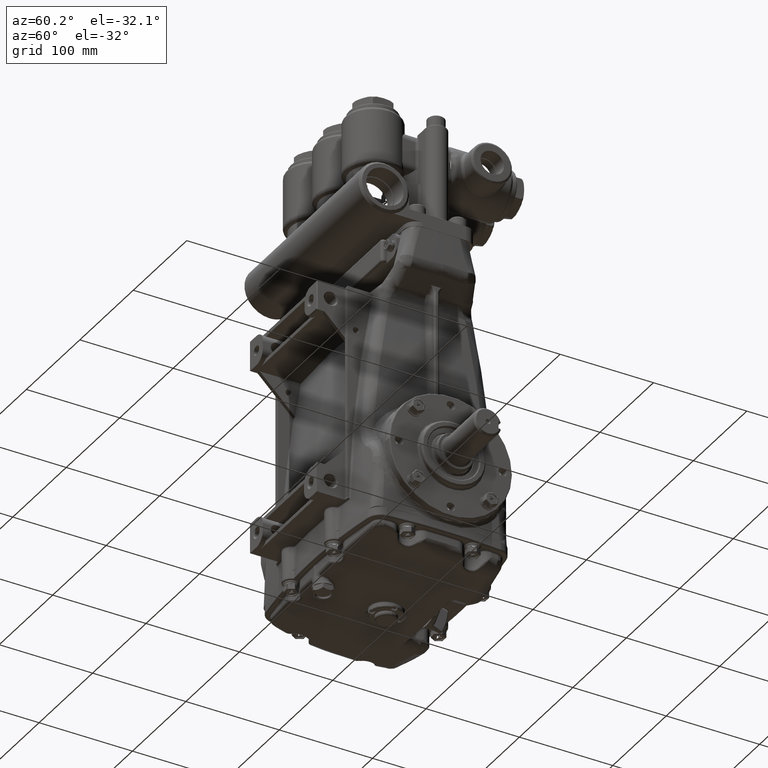
[diagram: clean part render]
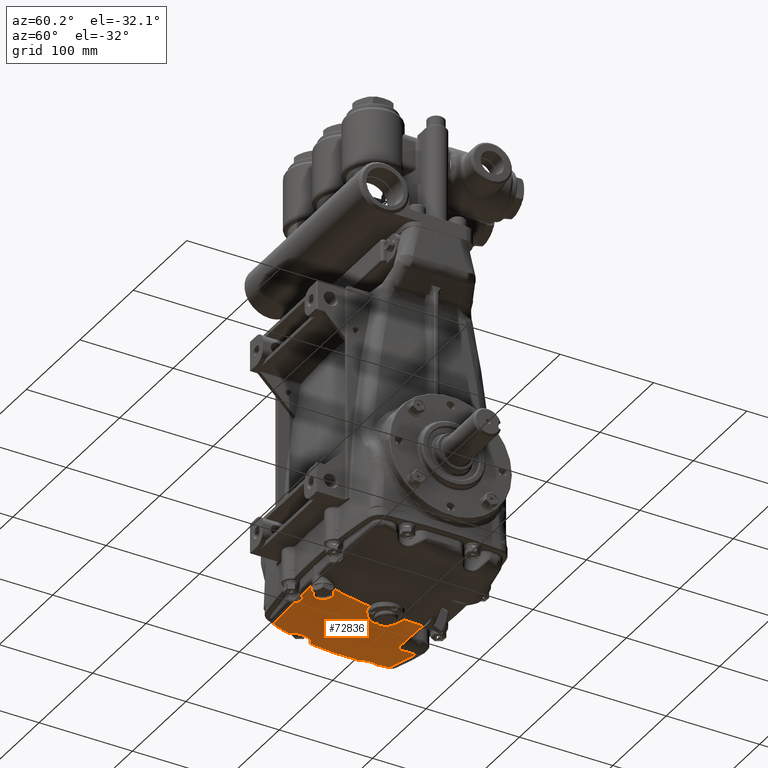
[diagram: same view with one face highlighted and labeled with its STEP entity id]
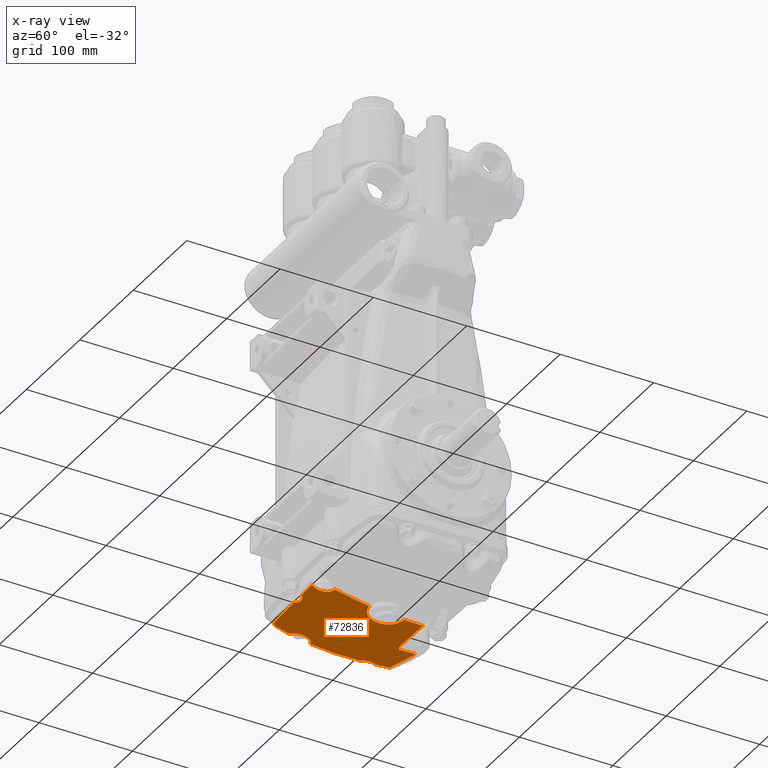
[diagram: x-ray of the same camera — body ghosted, the highlighted face saturated]
A machine part, auxiliary view. The second image highlights one B-rep face of the part: STEP entity #72836.
The next image is the same camera in x-ray: the body ghosted, the highlighted face saturated — about 0% of this face is hidden behind the body in this view.
In plain terms, the highlighted toroidal blend (fillet) surface has major radius 100 mm and minor (blend) radius 400 mm.
Its self-contained STEP definition (entity closure, byte-faithful):
#592 = CARTESIAN_POINT ( 'NONE',  ( -3.856336081969278684, -0.1044199386032027693, -3.803316479309694298 ) ) ;
#643 = VERTEX_POINT ( 'NONE', #35588 ) ;
#928 = CARTESIAN_POINT ( 'NONE',  ( -3.571024562914657086, 1.269346948349493021, -3.930934210272327700 ) ) ;
#1911 = CARTESIAN_POINT ( 'NONE',  ( -3.590000298304392157, 1.545245332004949290, -3.927292317479010197 ) ) ;
#2261 = CARTESIAN_POINT ( 'NONE',  ( -3.823806146129085537, -1.793153042647171569, -3.549776368419175654 ) ) ;
#2658 = CARTESIAN_POINT ( 'NONE',  ( -3.720859036953444665, 1.037867726598609819, -3.899014983528266587 ) ) ;
#2680 = CARTESIAN_POINT ( 'NONE',  ( 8.831981099300206732E-29, -0.7094424206646805509, -4.116319017392696011 ) ) ;
#2805 = CARTESIAN_POINT ( 'NONE',  ( -9.594870526277489442E-05, -2.167208969864354628, -3.849009837873281992 ) ) ;
#3098 = CARTESIAN_POINT ( 'NONE',  ( -1.876542483643144577, -2.812870495884016275, -3.592079507783254577 ) ) ;
#3300 = CARTESIAN_POINT ( 'NONE',  ( -0.03875249259764600163, -2.168561309346253019, -3.848661969262286320 ) ) ;
#3327 = CARTESIAN_POINT ( 'NONE',  ( -0.2318871692632969994, -0.6734999440132731774, -4.119816999286450176 ) ) ;
#3566 = CARTESIAN_POINT ( 'NONE',  ( 0.000000000000000000, 1.398871258882495416, 11.48994605243186840 ) ) ;
#3595 = ORIENTED_EDGE ( 'NONE', *, *, #26386, .T. ) ;
#3784 = CARTESIAN_POINT ( 'NONE',  ( -0.2809030884551332319, -2.259870291188983860, -3.825128626396551823 ) ) ;
#4221 = CARTESIAN_POINT ( 'NONE',  ( -3.569199946859465733, -1.290846983093253630, -3.696464366414474068 ) ) ;
#4291 = CARTESIAN_POINT ( 'NONE',  ( -0.7205948159291438726, -0.1167855076261579972, -4.171753997556006510 ) ) ;
#4764 = CARTESIAN_POINT ( 'NONE',  ( -0.1672298112018910932, -2.197643210452882467, -3.841182376156521361 ) ) ;
#4863 = CARTESIAN_POINT ( 'NONE',  ( -2.187762165971132156, -2.786261965328659329, -3.566853002154207530 ) ) ;
#5189 = CARTESIAN_POINT ( 'NONE',  ( -3.571925563724398067, -1.280049169528286290, -3.697855605797109479 ) ) ;
#5752 = CARTESIAN_POINT ( 'NONE',  ( -3.808751006990228394, -2.557495466567951237, -3.371037965365549116 ) ) ;
#5799 = CARTESIAN_POINT ( 'NONE',  ( -3.586567978287549696, 2.204579372434504414, -3.907619816998144646 ) ) ;
#5946 = CARTESIAN_POINT ( 'NONE',  ( -3.823806146129085537, -1.793153042647171569, -3.549776368419175654 ) ) ;
#6222 = CARTESIAN_POINT ( 'NONE',  ( -1.985933068909048860, 1.682544462914409511, -4.155086548889387110 ) ) ;
#6232 = CARTESIAN_POINT ( 'NONE',  ( -3.728132651066273340, -2.589356219755102551, -3.378722439390763110 ) ) ;
#6465 = B_SPLINE_CURVE_WITH_KNOTS ( 'NONE', 3,
 ( #24878, #23913, #69542, #54333 ),
 .UNSPECIFIED., .F., .F.,
 ( 4, 4 ),
 ( 0.000000000000000000, 0.0003623067658960041262 ),
 .UNSPECIFIED. ) ;
#6701 = CARTESIAN_POINT ( 'NONE',  ( -1.702059072287212205, 1.572153632602977247, -4.183406504010035221 ) ) ;
#7004 = CARTESIAN_POINT ( 'NONE',  ( -3.857385483870375165, -0.1147306797760912073, -3.802095298615916885 ) ) ;
#7072 = CARTESIAN_POINT ( 'NONE',  ( -1.773899349228732936, -2.741790388264389922, -3.621584547401897947 ) ) ;
#7547 = VERTEX_POINT ( 'NONE', #52713 ) ;
#7664 = CARTESIAN_POINT ( 'NONE',  ( -3.837911201487526736, -2.532833158084777825, -3.371615148318053201 ) ) ;
#7825 = CARTESIAN_POINT ( 'NONE',  ( -3.558036542331452168, 1.352642941017455414, -3.933798247993799180 ) ) ;
#8048 = CARTESIAN_POINT ( 'NONE',  ( -1.539795395510776155, -2.699382030295283119, -3.653449653502197858 ) ) ;
#8173 = ORIENTED_EDGE ( 'NONE', *, *, #79590, .T. ) ;
#8307 = CARTESIAN_POINT ( 'NONE',  ( -3.562506928695765129, 1.310741151847096608, -3.932794456441090603 ) ) ;
#8654 = EDGE_CURVE ( 'NONE', #83164, #77637, #54717, .T. ) ;
#8806 = CARTESIAN_POINT ( 'NONE',  ( -3.924604866268332604, -2.057005198355785769, -3.472238758579972551 ) ) ;
#9006 = CARTESIAN_POINT ( 'NONE',  ( -1.610741714477412989, -2.698428200343477634, -3.647849478386491651 ) ) ;
#9128 = CARTESIAN_POINT ( 'NONE',  ( -3.743911324225186465, -1.749837117440828482, -3.574789607459037732 ) ) ;
#9269 = CARTESIAN_POINT ( 'NONE',  ( -3.643069491762564560, 1.118233739748700994, -3.915502021971070334 ) ) ;
#9549 = DIRECTION ( 'NONE',  ( 0.000000000000000000, -1.000000000000000000, 0.000000000000000000 ) ) ;
#9620 = CARTESIAN_POINT ( 'NONE',  ( -3.889728796792139676, -0.9685609581753976682, -3.687365237285401331 ) ) ;
#10136 = CIRCLE ( 'NONE', #68147, 15.74803149606299613 ) ;
#10307 = B_SPLINE_CURVE_WITH_KNOTS ( 'NONE', 3,
 ( #33264, #11174, #56828, #27838, #4291, #41140, #93181, #57300, #34235, #86793, #19509, #10680, #87750, #87267, #71066, #40642, #12632, #70577, #33737, #3327, #49464, #63678, #63200, #79407, #93671, #12141 ),
 .UNSPECIFIED., .F., .F.,
 ( 4, 2, 2, 2, 2, 2, 2, 2, 2, 2, 2, 2, 4 ),
 ( 0.02967068868578288249, 0.03144727073204557632, 0.03322385277830827016, 0.03677701687083366477, 0.03855359891709635167, 0.04033018096335904551, 0.04388334505588442624, 0.04565992710214711314, 0.04743650914840980698, 0.05098967324093518771, 0.05454283733346056151, 0.05631941937972325535, 0.05809600142598594225 ),
 .UNSPECIFIED. ) ;
#10680 = CARTESIAN_POINT ( 'NONE',  ( -0.5751992477293694783, -0.4339937578021841325, -4.142675562527530886 ) ) ;
#11095 = CARTESIAN_POINT ( 'NONE',  ( -3.782867252268417690, -1.773366506794162190, -3.562143213188625257 ) ) ;
#11148 = CARTESIAN_POINT ( 'NONE',  ( -0.08794888599023548137, -2.174944401874601141, -3.847021442974329908 ) ) ;
#11174 = CARTESIAN_POINT ( 'NONE',  ( -0.7326448474044733317, -0.02334760493757999725, -4.180067160936830284 ) ) ;
#11390 = CARTESIAN_POINT ( 'NONE',  ( -0.6436197337498654747, 0.3762321093314812126, -4.214322574150810574 ) ) ;
#11523 = CARTESIAN_POINT ( 'NONE',  ( -3.641150822456610037, 1.689045926973561151, -3.915754152014077949 ) ) ;
#11574 = CARTESIAN_POINT ( 'NONE',  ( -3.565556694311471375, -1.478300578887186800, -3.662912931871748601 ) ) ;
#11627 = CARTESIAN_POINT ( 'NONE',  ( -0.1492240265829814783, -2.191407617498101423, -3.842787493928314646 ) ) ;
#12015 = CARTESIAN_POINT ( 'NONE',  ( -3.646664816487408256, 1.641861633727149217, -3.915456687385084233 ) ) ;
#12127 = CARTESIAN_POINT ( 'NONE',  ( -0.2312147224608472329, -2.227284888085850678, -3.833544824394693684 ) ) ;
#12141 = CARTESIAN_POINT ( 'NONE',  ( 8.831981099300206732E-29, -0.7094424206646805509, -4.116319017392696011 ) ) ;
#12368 = CARTESIAN_POINT ( 'NONE',  ( -0.1695984878451337052, 0.7368377801513780190, -4.243447675908007533 ) ) ;
#12546 = CARTESIAN_POINT ( 'NONE',  ( -1.483325959519877557, -2.708548588730216533, -3.655441807153450906 ) ) ;
#12565 = CARTESIAN_POINT ( 'NONE',  ( -3.666309327381368721, -1.103004602323025773, -3.710060390205493608 ) ) ;
#12614 = CARTESIAN_POINT ( 'NONE',  ( -0.4000620936014194773, -2.884814384941388532, -3.660086713610045450 ) ) ;
#12632 = CARTESIAN_POINT ( 'NONE',  ( -0.4204048834670997548, -0.5776786111235089338, -4.129050581195664371 ) ) ;
#12646 = CARTESIAN_POINT ( 'NONE',  ( -1.839702383721283807, 1.600343899877532339, -4.170657121996544703 ) ) ;
#13040 = CARTESIAN_POINT ( 'NONE',  ( -3.623986498022464531, -1.156194240433309428, -3.709360853722023066 ) ) ;
#13242 = B_SPLINE_CURVE_WITH_KNOTS ( 'NONE', 3,
 ( #49683, #72755, #63416, #12368, #48220, #42325, #93401, #26120, #50170, #42795, #92923, #40858, #72275, #56075, #48716, #19248, #64885, #78672, #11390, #35418, #33965, #27102, #63908, #94858, #93891, #49193 ),
 .UNSPECIFIED., .F., .F.,
 ( 4, 2, 2, 2, 2, 2, 2, 2, 2, 2, 2, 2, 4 ),
 ( 3.477027272647063963E-05, 0.003739260074358533980, 0.005591504975174564976, 0.007443749875990597273, 0.01114823967762265840, 0.01300048457843868549, 0.01392660702884669990, 0.01485272947925471605, 0.01855721928088675809, 0.02040946418170277998, 0.02226170908251880187, 0.02596619888415084218, 0.02967068868578288249 ),
 .UNSPECIFIED. ) ;
#13280 = CARTESIAN_POINT ( 'NONE',  ( -1.251971637957772110, -2.848422811770495944, -3.633445997943378636 ) ) ;
#13322 = CARTESIAN_POINT ( 'NONE',  ( -3.890080289396371960, -1.831042082516229019, -3.528246254989224173 ) ) ;
#13909 = CARTESIAN_POINT ( 'NONE',  ( -3.792022402689474880, 0.4669873753786961679, -3.861271663468865523 ) ) ;
#14159 = CARTESIAN_POINT ( 'NONE',  ( 2.003172396172104453E-16, 1.552323950496150795, -4.257337785501216665 ) ) ;
#14929 = CARTESIAN_POINT ( 'NONE',  ( -1.568112543660154401, -2.697609937580156547, -3.651622421538722740 ) ) ;
#14930 = B_SPLINE_CURVE_WITH_KNOTS ( 'NONE', 3,
 ( #5799, #74508, #96164, #50970, #20062, #35279 ),
 .UNSPECIFIED., .F., .F.,
 ( 4, 2, 4 ),
 ( 0.01283934888689720714, 0.03321189596127591820, 0.05358444303565463446 ),
 .UNSPECIFIED. ) ;
#15244 = TOROIDAL_SURFACE ( 'NONE', #81141, 3.937007874015747255, 15.74803149606299257 ) ;
#15418 = CARTESIAN_POINT ( 'NONE',  ( -1.582301698735254281, -2.697416655977635358, -3.650503169443640061 ) ) ;
#15681 = CARTESIAN_POINT ( 'NONE',  ( -3.720859036953444665, 1.037867726598609819, -3.899014983528266587 ) ) ;
#15828 = CARTESIAN_POINT ( 'NONE',  ( -0.2841113935614310027, 1.552323950496150795, -4.257337785501217553 ) ) ;
#15831 = CARTESIAN_POINT ( 'NONE',  ( -3.796477294136947123, 0.4300154785227613408, -3.858121665002101519 ) ) ;
#16174 = CARTESIAN_POINT ( 'NONE',  ( -3.614869700954454146, 1.595691655310186308, -3.922103556452251283 ) ) ;
#16199 = CARTESIAN_POINT ( 'NONE',  ( -3.894353775054843592, -2.412844718384135501, -3.391082440071080839 ) ) ;
#16516 = CARTESIAN_POINT ( 'NONE',  ( -3.576623568143437293, -1.521544856101116450, -3.652603060102907140 ) ) ;
#16654 = CARTESIAN_POINT ( 'NONE',  ( -3.679293713098080065, 1.075455956145037195, -3.907808745843722065 ) ) ;
#17145 = CARTESIAN_POINT ( 'NONE',  ( -3.709876536283832849, 1.046655803366102644, -3.901334670783993541 ) ) ;
#17489 = CARTESIAN_POINT ( 'NONE',  ( -3.922866597083941365, -0.9542416793586864232, -3.682798854708527081 ) ) ;
#18028 = CARTESIAN_POINT ( 'NONE',  ( -0.4105939205455987340, -2.867825373719068871, -3.664669352164220850 ) ) ;
#18515 = CARTESIAN_POINT ( 'NONE',  ( -0.4688351809062094033, -2.678922122723515375, -3.715237212575820180 ) ) ;
#18639 = CARTESIAN_POINT ( 'NONE',  ( -3.931430012626015102, -1.867895298749763677, -3.511778674847698234 ) ) ;
#18704 = ORIENTED_EDGE ( 'NONE', *, *, #62818, .T. ) ;
#18803 = CARTESIAN_POINT ( 'NONE',  ( -2.008675996339654990, 1.699112209371619331, -4.152456506698113614 ) ) ;
#19006 = CARTESIAN_POINT ( 'NONE',  ( -0.4666539912037031557, -2.698749515008310507, -3.709959679532332633 ) ) ;
#19248 = CARTESIAN_POINT ( 'NONE',  ( -0.5613533836159116941, 0.4979225309362133589, -4.224345706114779553 ) ) ;
#19489 = CARTESIAN_POINT ( 'NONE',  ( -0.009711152386715517920, -2.167293047901670988, -3.848988194462664048 ) ) ;
#19509 = CARTESIAN_POINT ( 'NONE',  ( -0.6154076341949831219, -0.3763659286295493733, -4.148051604193503827 ) ) ;
#19635 = ORIENTED_EDGE ( 'NONE', *, *, #77135, .T. ) ;
#19726 = CARTESIAN_POINT ( 'NONE',  ( -3.896749232888760073, -1.836051885781699644, -3.525805192844899238 ) ) ;
#19899 = CARTESIAN_POINT ( 'NONE',  ( -1.294437020861755938, -2.804397625306670250, -3.642922082778243364 ) ) ;
#19973 = CARTESIAN_POINT ( 'NONE',  ( -0.2543312979816887420, -2.241774624488717116, -3.829803928739639929 ) ) ;
#20062 = CARTESIAN_POINT ( 'NONE',  ( -2.273859509442015536, 2.372132690393284893, -4.097843512510861430 ) ) ;
#20404 = CARTESIAN_POINT ( 'NONE',  ( -3.562290405531893800, -1.323502582385556403, -3.691970927694604221 ) ) ;
#20891 = CARTESIAN_POINT ( 'NONE',  ( -3.581774035778366283, -1.248057270781688377, -3.701597806483449826 ) ) ;
#21163 = B_SPLINE_CURVE_WITH_KNOTS ( 'NONE', 3,
 ( #23956, #22975, #54379, #84328 ),
 .UNSPECIFIED., .F., .F.,
 ( 4, 4 ),
 ( 0.01015079917255678164, 0.03165487600483053027 ),
 .UNSPECIFIED. ) ;
#21272 = CARTESIAN_POINT ( 'NONE',  ( -3.903978049561197317, -0.6367224115314672472, -3.733273535079652206 ) ) ;
#21351 = ORIENTED_EDGE ( 'NONE', *, *, #54410, .T. ) ;
#21445 = CARTESIAN_POINT ( 'NONE',  ( -1.980190692304566902, 1.678499398813846799, -4.155740781809343254 ) ) ;
#22079 = VERTEX_POINT ( 'NONE', #31731 ) ;
#22233 = CARTESIAN_POINT ( 'NONE',  ( -3.856492926874590665, -0.1059592762760340756, -3.803134364853097971 ) ) ;
#22411 = CARTESIAN_POINT ( 'NONE',  ( -3.799545904417045428, -2.563412623788971612, -3.371332548413954022 ) ) ;
#22702 = CARTESIAN_POINT ( 'NONE',  ( -1.135598341861514093, 1.560588766913248326, -4.226523957895675032 ) ) ;
#22975 = CARTESIAN_POINT ( 'NONE',  ( -0.6823706657701417155, -2.879987158023668670, -3.655534384585330532 ) ) ;
#23270 = CARTESIAN_POINT ( 'NONE',  ( -1.667393450367502972, -2.705358816505083031, -3.641120838932098369 ) ) ;
#23340 = CARTESIAN_POINT ( 'NONE',  ( -3.922866597083941365, -0.9542416793586864232, -3.682798854708527081 ) ) ;
#23532 = CARTESIAN_POINT ( 'NONE',  ( -3.569211159553659751, 1.478279541948075426, -3.931601964570311303 ) ) ;
#23913 = CARTESIAN_POINT ( 'NONE',  ( -1.869383322616463117, -2.807057063106219719, -3.594405301457350710 ) ) ;
#23956 = CARTESIAN_POINT ( 'NONE',  ( -0.4000620936014194773, -2.884814384941388532, -3.660086713610045450 ) ) ;
#24284 = CARTESIAN_POINT ( 'NONE',  ( 0.000000000000000000, 1.398871258882495416, 15.42695392644761476 ) ) ;
#24640 = CARTESIAN_POINT ( 'NONE',  ( -2.652583506864619523, -2.737926215506778505, -3.520903792172098257 ) ) ;
#24878 = CARTESIAN_POINT ( 'NONE',  ( -1.865905063327786717, -2.804038209525553160, -3.595586502535783158 ) ) ;
#24988 = CARTESIAN_POINT ( 'NONE',  ( -3.587931312282341079, 1.215500707963219851, -3.927282676930602179 ) ) ;
#25136 = CARTESIAN_POINT ( 'NONE',  ( -2.032226649174575517, -2.800345578350611930, -3.580211935989142447 ) ) ;
#25345 = CARTESIAN_POINT ( 'NONE',  ( -3.725752653479702303, -1.736515680076643919, -3.581122572377397173 ) ) ;
#25403 = CARTESIAN_POINT ( 'NONE',  ( -0.001200909946125528621, -2.167210218710444725, -3.849009515562971107 ) ) ;
#25650 = ORIENTED_EDGE ( 'NONE', *, *, #27322, .T. ) ;
#25826 = CARTESIAN_POINT ( 'NONE',  ( -3.628610022654704004, -1.630721877838242850, -3.621390992949694798 ) ) ;
#26120 = CARTESIAN_POINT ( 'NONE',  ( -0.3314371216564471756, 0.6791190190455137499, -4.238900926288713400 ) ) ;
#26141 = DIRECTION ( 'NONE',  ( 0.000000000000000000, 0.000000000000000000, 1.000000000000000000 ) ) ;
#26369 = CARTESIAN_POINT ( 'NONE',  ( -0.1336221978260047627, -2.186550903879798557, -3.844037220280562384 ) ) ;
#26386 = EDGE_CURVE ( 'NONE', #96836, #643, #10136, .T. ) ;
#26866 = CARTESIAN_POINT ( 'NONE',  ( -0.01941513420261289924, -2.167546464858327582, -3.848922988522603283 ) ) ;
#27102 = CARTESIAN_POINT ( 'NONE',  ( -0.7021299061577462863, 0.2418273516633272224, -4.203043769428144394 ) ) ;
#27223 = DIRECTION ( 'NONE',  ( 0.000000000000000000, 0.000000000000000000, 1.000000000000000000 ) ) ;
#27322 = EDGE_CURVE ( 'NONE', #643, #7547, #40879, .T. ) ;
#27339 = CARTESIAN_POINT ( 'NONE',  ( -0.2120262397635651885, -2.217047972753988017, -3.836183668152953974 ) ) ;
#27668 = CARTESIAN_POINT ( 'NONE',  ( -1.702059072287212205, 1.572153632602977247, -4.183406504010035221 ) ) ;
#27766 = CARTESIAN_POINT ( 'NONE',  ( -3.872407700373652339, -0.9735357559509230096, -3.690100359438702515 ) ) ;
#27818 = CARTESIAN_POINT ( 'NONE',  ( -0.2521037060183913825, -2.240354173270926896, -3.830170711622506996 ) ) ;
#27838 = CARTESIAN_POINT ( 'NONE',  ( -0.7247687298725997707, -0.09338117888336211481, -4.173847195936508214 ) ) ;
#27850 = CARTESIAN_POINT ( 'NONE',  ( -1.951141882963512098, 1.658868436047786554, -4.158998488714520825 ) ) ;
#28254 = CARTESIAN_POINT ( 'NONE',  ( -3.681603483045332137, -1.086558863354843085, -3.709808868518035929 ) ) ;
#28807 = CARTESIAN_POINT ( 'NONE',  ( -2.003069288343956700, 1.694939550856162658, -4.153111690900376907 ) ) ;
#29827 = CARTESIAN_POINT ( 'NONE',  ( -2.008675996339654990, 1.699112209371619331, -4.152456506698113614 ) ) ;
#30077 = CARTESIAN_POINT ( 'NONE',  ( -3.850323252636219884, -0.04590539798590777265, -3.810181176402653414 ) ) ;
#30406 = CARTESIAN_POINT ( 'NONE',  ( -3.619782770036453101, 1.153003437474545256, -3.920465056550476390 ) ) ;
#30550 = CARTESIAN_POINT ( 'NONE',  ( -3.845602816808145974, -0.001297524695629234323, -3.815247980709609799 ) ) ;
#30738 = VERTEX_POINT ( 'NONE', #23340 ) ;
#31731 = CARTESIAN_POINT ( 'NONE',  ( -3.894353775054843592, -2.412844718384135501, -3.391082440071080839 ) ) ;
#31879 = VERTEX_POINT ( 'NONE', #3098 ) ;
#32286 = EDGE_CURVE ( 'NONE', #56109, #30738, #84649, .T. ) ;
#32754 = CARTESIAN_POINT ( 'NONE',  ( -0.0003315103618063512930, -2.167209043041733008, -3.849009818742299860 ) ) ;
#33191 = CARTESIAN_POINT ( 'NONE',  ( -3.676278122297544471, -1.691724115249404470, -3.599952879475762035 ) ) ;
#33264 = CARTESIAN_POINT ( 'NONE',  ( -0.7333930364450115258, -4.736762322988630755E-16, -4.182122793431191532 ) ) ;
#33720 = CARTESIAN_POINT ( 'NONE',  ( -0.3601816108075819312, -2.334692744703049438, -3.805735197801404457 ) ) ;
#33737 = CARTESIAN_POINT ( 'NONE',  ( -0.3199554128038990530, -0.6378019422072793709, -4.123271795498789416 ) ) ;
#33757 = VERTEX_POINT ( 'NONE', #74026 ) ;
#33965 = CARTESIAN_POINT ( 'NONE',  ( -0.6757728256282572454, 0.3100357875975383593, -4.208792192486542127 ) ) ;
#34096 = CARTESIAN_POINT ( 'NONE',  ( 0.000000000000000000, 1.398871258882495416, 11.48994605243186840 ) ) ;
#34215 = CARTESIAN_POINT ( 'NONE',  ( -0.3335317334427909119, -2.304989040155785762, -3.813447997316724791 ) ) ;
#34235 = CARTESIAN_POINT ( 'NONE',  ( -0.6511716888856826646, -0.3151885873837880214, -4.153718519512405116 ) ) ;
#34707 = CARTESIAN_POINT ( 'NONE',  ( -0.4704666855075380627, -2.608629646960346271, -3.733894284309645872 ) ) ;
#34727 = CARTESIAN_POINT ( 'NONE',  ( -3.586567978287549696, 2.204579372434504414, -3.907619816998144646 ) ) ;
#35139 = CARTESIAN_POINT ( 'NONE',  ( -3.558470585944946585, -1.423545833694839224, -3.674470586085911705 ) ) ;
#35185 = CARTESIAN_POINT ( 'NONE',  ( -0.4271558012051866471, -2.439955005846153657, -3.778285444153360206 ) ) ;
#35279 = CARTESIAN_POINT ( 'NONE',  ( -2.008661041545683812, 2.395021426171620060, -4.123632080681848500 ) ) ;
#35418 = CARTESIAN_POINT ( 'NONE',  ( -0.6658396590136336224, 0.3323736264464970946, -4.210664640046855034 ) ) ;
#35560 = CARTESIAN_POINT ( 'NONE',  ( -3.596555863705919176, 2.102024380226076072, -3.911110537650425378 ) ) ;
#35582 = ORIENTED_EDGE ( 'NONE', *, *, #50101, .T. ) ;
#35588 = CARTESIAN_POINT ( 'NONE',  ( 0.000000000000000000, -2.167208969044768896, -3.849009838011859141 ) ) ;
#35705 = CARTESIAN_POINT ( 'NONE',  ( -3.821734284347727773, -2.547531750562168185, -3.371035561729336827 ) ) ;
#36286 = EDGE_LOOP ( 'NONE', ( #50126, #45483, #35582, #48768, #3595, #25650, #81721, #18704, #67635, #92128, #68891, #8173, #88335, #84896, #46780, #61064, #75406, #62097, #21351, #19635, #43819, #78446 ) ) ;
#36548 = VERTEX_POINT ( 'NONE', #2658 ) ;
#37434 = CARTESIAN_POINT ( 'NONE',  ( -3.824356561232345797, 0.1923408286097718911, -3.836089084730111232 ) ) ;
#37935 = CARTESIAN_POINT ( 'NONE',  ( -3.882422683516364881, -0.3767430802198906692, -3.769234801205942009 ) ) ;
#39068 = VERTEX_POINT ( 'NONE', #73254 ) ;
#39714 = CARTESIAN_POINT ( 'NONE',  ( -3.651577663409990127, 1.107144861279762305, -3.913692453278582395 ) ) ;
#39861 = CARTESIAN_POINT ( 'NONE',  ( -3.764785756400940375, 0.6911086100981839175, -3.879508818766918221 ) ) ;
#40642 = CARTESIAN_POINT ( 'NONE',  ( -0.4394286413597907615, -0.5639547413922114671, -4.130363432804765367 ) ) ;
#40858 = CARTESIAN_POINT ( 'NONE',  ( -0.4826299460154662158, 0.5755814673259654901, -4.230630816100223512 ) ) ;
#40879 = B_SPLINE_CURVE_WITH_KNOTS ( 'NONE', 3,
 ( #70058, #2805, #32754, #92672, #25403, #55350, #85280, #19489, #26866, #3300, #63185, #11148, #94148, #26369, #87243, #63658, #11627, #4764, #56811, #27339, #12127, #27818, #19973, #93163, #64159, #3784, #94625, #93650, #34215, #41595, #71536, #71049, #33720, #56320, #42561, #86284, #49928, #79389, #55832, #35185, #49447, #86773, #42079, #48471, #85778, #72034, #57751, #34707, #65131, #64662, #18515, #19006, #57280, #95103, #72528, #79869, #78434, #18028, #12614 ),
 .UNSPECIFIED., .F., .F.,
 ( 4, 2, 1, 1, 1, 1, 1, 1, 2, 2, 2, 1, 1, 2, 2, 2, 1, 1, 2, 2, 2, 1, 1, 1, 2, 2, 1, 1, 1, 2, 2, 1, 1, 2, 2, 1, 2, 2, 4 ),
 ( 0.000000000000000000, 0.0004882812499999952295, 0.0009765624999999906759, 0.001953124999999983520, 0.003906249999999972244, 0.007812499999999956632, 0.01562499999999991673, 0.03124999999999986122, 0.06249999999999972244, 0.1249999999999995282, 0.1328124999999995282, 0.1406249999999995282, 0.1562499999999996947, 0.1875000000000003331, 0.2500000000000019429, 0.2578125000000021094, 0.2656250000000022204, 0.2812500000000019429, 0.3125000000000017208, 0.3750000000000012768, 0.3828125000000014988, 0.3906250000000016653, 0.4062500000000018874, 0.4375000000000023870, 0.5000000000000031086, 0.5078125000000036637, 0.5156250000000043299, 0.5312500000000045519, 0.5625000000000051070, 0.6250000000000058842, 0.6406250000000061062, 0.6562500000000062172, 0.6875000000000065503, 0.7500000000000068834, 0.7812500000000059952, 0.8125000000000051070, 0.8750000000000034417, 0.9375000000000016653, 1.000000000000000000 ),
 .UNSPECIFIED. ) ;
#41140 = CARTESIAN_POINT ( 'NONE',  ( -0.7048825744681508354, -0.1855135888287400558, -4.165576125922034301 ) ) ;
#41395 = CARTESIAN_POINT ( 'NONE',  ( -2.008661041545683812, 2.395021426171620060, -4.123632080681848500 ) ) ;
#41487 = CARTESIAN_POINT ( 'NONE',  ( -3.635856493179457694, 1.735134361607337139, -3.915810476285058517 ) ) ;
#41539 = CARTESIAN_POINT ( 'NONE',  ( -3.561708820047775781, -1.456503664008730770, -3.667735088596133508 ) ) ;
#41595 = CARTESIAN_POINT ( 'NONE',  ( -0.3498376837791219440, -2.322887247188501370, -3.808801509468016544 ) ) ;
#42079 = CARTESIAN_POINT ( 'NONE',  ( -0.4558820715424477532, -2.518968878706119963, -3.757554934788359891 ) ) ;
#42325 = CARTESIAN_POINT ( 'NONE',  ( -0.2398841546647241529, 0.7164313281882426221, -4.241844484501135604 ) ) ;
#42551 = B_SPLINE_CURVE_WITH_KNOTS ( 'NONE', 3,
 ( #27668, #75745, #22702, #95935, #15828, #96859 ),
 .UNSPECIFIED., .F., .F.,
 ( 4, 2, 4 ),
 ( 0.000000000000000000, 0.02164562709222141862, 0.04329125418444283724 ),
 .UNSPECIFIED. ) ;
#42561 = CARTESIAN_POINT ( 'NONE',  ( -0.3936161598091762470, -2.378162513431485880, -3.794426700041710454 ) ) ;
#42795 = CARTESIAN_POINT ( 'NONE',  ( -0.4348432745133541943, 0.6142312176195136031, -4.233734301648255816 ) ) ;
#42796 = CARTESIAN_POINT ( 'NONE',  ( -3.931430012626015102, -1.867895298749763677, -3.511778674847698234 ) ) ;
#43257 = CARTESIAN_POINT ( 'NONE',  ( -3.883271050964964832, -1.826111837211211730, -3.530696165240563733 ) ) ;
#43396 = CARTESIAN_POINT ( 'NONE',  ( -3.628636735747314379, 1.799282432031163115, -3.915574794031119854 ) ) ;
#43819 = ORIENTED_EDGE ( 'NONE', *, *, #55815, .T. ) ;
#43845 = CARTESIAN_POINT ( 'NONE',  ( -3.791746184675607534, 0.4692712009456285194, -3.861463653829530163 ) ) ;
#44026 = CARTESIAN_POINT ( 'NONE',  ( -3.872228801463852399, -2.496073845787342815, -3.374264766940050286 ) ) ;
#44086 = CIRCLE ( 'NONE', #72375, 15.74803149606299613 ) ;
#44325 = CARTESIAN_POINT ( 'NONE',  ( -3.914950705278929188, -0.8003354207640530626, -3.708167366187544722 ) ) ;
#45146 = VERTEX_POINT ( 'NONE', #77782 ) ;
#45280 = CARTESIAN_POINT ( 'NONE',  ( -3.922866597083941365, -0.9542416793586864232, -3.682798854708527081 ) ) ;
#45483 = ORIENTED_EDGE ( 'NONE', *, *, #94324, .T. ) ;
#45696 = CARTESIAN_POINT ( 'NONE',  ( -3.823806146129085537, -1.793153042647171569, -3.549776368419175654 ) ) ;
#45773 = CARTESIAN_POINT ( 'NONE',  ( -3.794676958802428945, 0.4450010077993709068, -3.859411781232362948 ) ) ;
#46096 = CARTESIAN_POINT ( 'NONE',  ( -3.646664816487408256, 1.641861633727149217, -3.915456687385084233 ) ) ;
#46244 = CARTESIAN_POINT ( 'NONE',  ( -3.791561897157138539, 0.4707945788504462326, -3.861591610310981526 ) ) ;
#46389 = EDGE_CURVE ( 'NONE', #30738, #36548, #60725, .T. ) ;
#46587 = CARTESIAN_POINT ( 'NONE',  ( -3.669700742828946982, 1.085740204855080382, -3.909843487322180788 ) ) ;
#46780 = ORIENTED_EDGE ( 'NONE', *, *, #59055, .T. ) ;
#47079 = CARTESIAN_POINT ( 'NONE',  ( -3.627159963890523198, 1.141184636597230018, -3.918890905537267599 ) ) ;
#47852 = DIRECTION ( 'NONE',  ( -1.000000000000000000, -0.000000000000000000, -0.000000000000000000 ) ) ;
#48220 = CARTESIAN_POINT ( 'NONE',  ( -0.1931858690048544602, 0.7308351785001837575, -4.242976782697793325 ) ) ;
#48346 = EDGE_CURVE ( 'NONE', #77637, #31879, #6465, .T. ) ;
#48471 = CARTESIAN_POINT ( 'NONE',  ( -0.4612546826084054641, -2.544079645038651361, -3.750938969889296537 ) ) ;
#48716 = CARTESIAN_POINT ( 'NONE',  ( -0.5187115258286668640, 0.5419200791875214973, -4.227912918844326740 ) ) ;
#48768 = ORIENTED_EDGE ( 'NONE', *, *, #95156, .T. ) ;
#49193 = CARTESIAN_POINT ( 'NONE',  ( -0.7333930364450115258, -4.736762322988630755E-16, -4.182122793431191532 ) ) ;
#49447 = CARTESIAN_POINT ( 'NONE',  ( -0.4345050193925160675, -2.456275259616834017, -3.774012791601869754 ) ) ;
#49464 = CARTESIAN_POINT ( 'NONE',  ( -0.1868444893333285617, -0.6868284045715552510, -4.118521080137340640 ) ) ;
#49546 = CARTESIAN_POINT ( 'NONE',  ( -3.115494169941632308, -2.681998754487130210, -3.467583127712007940 ) ) ;
#49683 = CARTESIAN_POINT ( 'NONE',  ( 1.484937481530693995E-28, 0.7562672354312620637, -4.244969138634028916 ) ) ;
#49857 = CARTESIAN_POINT ( 'NONE',  ( -1.441755554501353176, -2.719601105694878118, -3.655645177967421500 ) ) ;
#49878 = CARTESIAN_POINT ( 'NONE',  ( -3.741710729344374098, -1.036040928004970940, -3.706277664822343443 ) ) ;
#49928 = CARTESIAN_POINT ( 'NONE',  ( -0.4204488178842845647, -2.426171324757533387, -3.781890857277174334 ) ) ;
#50101 = EDGE_CURVE ( 'NONE', #33757, #39068, #13242, .T. ) ;
#50126 = ORIENTED_EDGE ( 'NONE', *, *, #71790, .T. ) ;
#50170 = CARTESIAN_POINT ( 'NONE',  ( -0.3743476510127305423, 0.6556170164865002814, -4.237038848909743471 ) ) ;
#50360 = CARTESIAN_POINT ( 'NONE',  ( -3.829046568692461072, -0.9859889884938737303, -3.696947467872552462 ) ) ;
#50441 = CARTESIAN_POINT ( 'NONE',  ( -1.812819203981733018, 1.590664432579984133, -4.173283024214539338 ) ) ;
#50779 = CARTESIAN_POINT ( 'NONE',  ( -3.630471576266146805, 1.782938555278715365, -3.915643392077000851 ) ) ;
#50834 = CARTESIAN_POINT ( 'NONE',  ( -3.559373845499226086, -1.345622530806547701, -3.688549184093447675 ) ) ;
#50970 = CARTESIAN_POINT ( 'NONE',  ( -2.538175973886774628, 2.344752768743589399, -4.066935304130395501 ) ) ;
#51025 = VERTEX_POINT ( 'NONE', #18639 ) ;
#51214 = CARTESIAN_POINT ( 'NONE',  ( -3.792665419278174799, 0.4616671380343815856, -3.860823300251764234 ) ) ;
#51409 = CARTESIAN_POINT ( 'NONE',  ( -3.825924641128744419, -2.544029179437345523, -3.371107991677425364 ) ) ;
#52713 = CARTESIAN_POINT ( 'NONE',  ( -0.4000620936014194773, -2.884814384941388532, -3.660086713610045450 ) ) ;
#53146 = CARTESIAN_POINT ( 'NONE',  ( -3.808989908047176964, 0.3247673637608677333, -3.848740457566395712 ) ) ;
#53224 = CARTESIAN_POINT ( 'NONE',  ( -1.747962851359756931, -2.730000400886859246, -3.627202804908173039 ) ) ;
#53482 = CARTESIAN_POINT ( 'NONE',  ( -3.570906502327740206, 1.485177623508451727, -3.931252389190742491 ) ) ;
#54109 = CARTESIAN_POINT ( 'NONE',  ( -3.790790875176734076, 0.4771662425097313309, -3.862126020369943458 ) ) ;
#54181 = CARTESIAN_POINT ( 'NONE',  ( -1.694780199666231502, -2.711852277465110816, -3.636945158084419205 ) ) ;
#54233 = DIRECTION ( 'NONE',  ( 0.000000000000000000, 0.000000000000000000, -1.000000000000000000 ) ) ;
#54333 = CARTESIAN_POINT ( 'NONE',  ( -1.876542483643144577, -2.812870495884016275, -3.592079507783254577 ) ) ;
#54379 = CARTESIAN_POINT ( 'NONE',  ( -0.9642629750196214378, -2.870057643695232752, -3.646170577708936378 ) ) ;
#54410 = EDGE_CURVE ( 'NONE', #96655, #81323, #61566, .T. ) ;
#54591 = CARTESIAN_POINT ( 'NONE',  ( -3.422575592899133934, -2.638662439618070898, -3.426138711723588859 ) ) ;
#54717 = B_SPLINE_CURVE_WITH_KNOTS ( 'NONE', 3,
 ( #65058, #64588, #19899, #95036, #94555, #87664, #49857, #12546, #89580, #74349, #8048, #14929, #15418, #9006, #66960, #23270, #54181, #53224, #7072, #83162, #67939, #96937 ),
 .UNSPECIFIED., .F., .F.,
 ( 4, 2, 2, 2, 2, 2, 2, 2, 2, 2, 4 ),
 ( 0.000000000000000000, 0.002171790190448051258, 0.004343580380896102516, 0.006515370571344154642, 0.007601265666568180271, 0.008687160761792205033, 0.009773055857016231529, 0.01085895095224025629, 0.01303074114268829367, 0.01520253133313632932, 0.01737432152358436496 ),
 .UNSPECIFIED. ) ;
#54806 = CARTESIAN_POINT ( 'NONE',  ( -3.772934225025008637, -1.767723657665168258, -3.565301345174031411 ) ) ;
#54942 = CARTESIAN_POINT ( 'NONE',  ( -3.559631653986548905, 1.422800986008825541, -3.933555657411801132 ) ) ;
#55297 = CARTESIAN_POINT ( 'NONE',  ( -3.654759697775751714, -1.666555581878081504, -3.609193777135003334 ) ) ;
#55350 = CARTESIAN_POINT ( 'NONE',  ( -0.002417758106188943809, -2.167214113682530474, -3.849008512274060934 ) ) ;
#55777 = CARTESIAN_POINT ( 'NONE',  ( -3.583674215354935022, -1.542377043077658660, -3.647264337705903969 ) ) ;
#55815 = EDGE_CURVE ( 'NONE', #72701, #71460, #65048, .T. ) ;
#55832 = CARTESIAN_POINT ( 'NONE',  ( -0.4238283835840898628, -2.433022972903845726, -3.780098952458255557 ) ) ;
#56075 = CARTESIAN_POINT ( 'NONE',  ( -0.5099414595242286463, 0.5505278595849359968, -4.228609309622873624 ) ) ;
#56109 = VERTEX_POINT ( 'NONE', #70722 ) ;
#56119 = CARTESIAN_POINT ( 'NONE',  ( -2.008668713783337445, 2.163255561837236662, -4.138398513542967727 ) ) ;
#56320 = CARTESIAN_POINT ( 'NONE',  ( -0.3718317708820091383, -2.348834842395194134, -3.802059200096006286 ) ) ;
#56811 = CARTESIAN_POINT ( 'NONE',  ( -0.1823164590597846912, -2.203765920027584091, -3.839605573789397930 ) ) ;
#56828 = CARTESIAN_POINT ( 'NONE',  ( -0.7307805406606031617, -0.04669337059872072371, -4.178000921773150189 ) ) ;
#57229 = CARTESIAN_POINT ( 'NONE',  ( -3.557528499339322803, -1.379325260087862715, -3.682774166642691860 ) ) ;
#57280 = CARTESIAN_POINT ( 'NONE',  ( -0.4624397592743121344, -2.728321011074997138, -3.702080546859464416 ) ) ;
#57300 = CARTESIAN_POINT ( 'NONE',  ( -0.6617242801898250981, -0.2941081225239444152, -4.155659763979545396 ) ) ;
#57751 = CARTESIAN_POINT ( 'NONE',  ( -0.4664539487269453999, -2.573755688745085646, -3.743110695277837685 ) ) ;
#58141 = CARTESIAN_POINT ( 'NONE',  ( -3.630151558374008491, 1.785782748953398613, -3.915632575170645779 ) ) ;
#58198 = CARTESIAN_POINT ( 'NONE',  ( -3.706325332766601033, -1.063819543522953381, -3.708709783262173154 ) ) ;
#58220 = CARTESIAN_POINT ( 'NONE',  ( -1.865905063327786717, -2.804038209525553160, -3.595586502535783158 ) ) ;
#59055 = EDGE_CURVE ( 'NONE', #92525, #56109, #72690, .T. ) ;
#59080 = CARTESIAN_POINT ( 'NONE',  ( -3.622264339325737659, 1.856823665450294314, -3.915199426310156827 ) ) ;
#59522 = CARTESIAN_POINT ( 'NONE',  ( -3.874388036586342565, -0.2876572989029211880, -3.780937091861289012 ) ) ;
#60068 = CARTESIAN_POINT ( 'NONE',  ( -1.254974850051161051, -2.845013873635469093, -3.634204289657825271 ) ) ;
#60313 = CARTESIAN_POINT ( 'NONE',  ( -3.872407700373652339, -0.9735357559509230096, -3.690100359438702515 ) ) ;
#60481 = CARTESIAN_POINT ( 'NONE',  ( -3.863250567740788011, -0.1732672366160281363, -3.795056054097240672 ) ) ;
#60725 = B_SPLINE_CURVE_WITH_KNOTS ( 'NONE', 3,
 ( #45280, #44325, #21272, #37935, #59522, #60481, #74280, #7004, #66886, #89507, #22233, #592, #82103, #74756, #30077, #30550, #90473, #37434, #53146, #83088, #15831, #45773, #51214, #13909, #43845, #46244, #68840, #54109, #62431, #39861, #69796, #92409 ),
 .UNSPECIFIED., .F., .F.,
 ( 4, 2, 2, 1, 1, 2, 2, 1, 1, 1, 2, 2, 2, 1, 1, 1, 2, 2, 1, 1, 4 ),
 ( 0.3235526513223349054, 0.4296512744850297105, 0.4827005860663771131, 0.4959629139617139915, 0.4992784959355481833, 0.4996929436822774573, 0.5001073914290067313, 0.5009362869224653902, 0.5025940779093825972, 0.5092252418570515360, 0.5357498976477277353, 0.5887992092290801338, 0.6153238650197562221, 0.6219550289674252719, 0.6236128199543424788, 0.6244417154478011378, 0.6248561631945304118, 0.6252706109412597968, 0.6285861929150942107, 0.6418485208104317552, 0.7479471439731324445 ),
 .UNSPECIFIED. ) ;
#60760 = EDGE_CURVE ( 'NONE', #71460, #45146, #94599, .T. ) ;
#60822 = CARTESIAN_POINT ( 'NONE',  ( -3.559074637217336967, 1.338662804192957356, -3.933559448103052247 ) ) ;
#61064 = ORIENTED_EDGE ( 'NONE', *, *, #32286, .T. ) ;
#61178 = CARTESIAN_POINT ( 'NONE',  ( -3.767941034040724446, -1.764754778973809168, -3.566913580876192924 ) ) ;
#61343 = CARTESIAN_POINT ( 'NONE',  ( -3.931430012626015102, -1.867895298749763677, -3.511778674847698234 ) ) ;
#61566 = B_SPLINE_CURVE_WITH_KNOTS ( 'NONE', 3,
 ( #12015, #11523, #41487, #50779, #58141, #87630, #43396, #73375, #59080, #89547, #96434, #35560, #89061 ),
 .UNSPECIFIED., .F., .F.,
 ( 4, 2, 2, 1, 1, 1, 2, 4 ),
 ( 0.8780055780770459339, 0.9085041835577849501, 0.9104103464003311386, 0.9123165092428773271, 0.9161288349279695931, 0.9237534862981541250, 0.9390027890385231890, 1.000000000000000000 ),
 .UNSPECIFIED. ) ;
#62097 = ORIENTED_EDGE ( 'NONE', *, *, #69890, .T. ) ;
#62289 = CARTESIAN_POINT ( 'NONE',  ( -3.557630086493761556, 1.394595553143769706, -3.933941454815170768 ) ) ;
#62431 = CARTESIAN_POINT ( 'NONE',  ( -3.787706684817586211, 0.5026324402949193804, -3.864249473063884999 ) ) ;
#62560 = FACE_OUTER_BOUND ( 'NONE', #36286, .T. ) ;
#62818 = EDGE_CURVE ( 'NONE', #85129, #83164, #87375, .T. ) ;
#63131 = CARTESIAN_POINT ( 'NONE',  ( -3.647908808587282170, -1.657888597091843330, -3.612256570413352019 ) ) ;
#63185 = CARTESIAN_POINT ( 'NONE',  ( -0.05520579533585188992, -2.170302024213781600, -3.848214535836679939 ) ) ;
#63200 = CARTESIAN_POINT ( 'NONE',  ( -0.09457813546736117127, -0.7037112056917489422, -4.116877650910711672 ) ) ;
#63416 = CARTESIAN_POINT ( 'NONE',  ( -0.09813311369191456135, 0.7513052376413816846, -4.244581605240671962 ) ) ;
#63658 = CARTESIAN_POINT ( 'NONE',  ( -0.1414206404958676944, -2.188929745826314832, -3.843425143802710497 ) ) ;
#63678 = CARTESIAN_POINT ( 'NONE',  ( -0.1178276267078827017, -0.7003101889405470848, -4.117209025503628439 ) ) ;
#63908 = CARTESIAN_POINT ( 'NONE',  ( -0.7151464090954867681, 0.1947740051705818820, -4.199037833616118931 ) ) ;
#64159 = CARTESIAN_POINT ( 'NONE',  ( -0.2655483441281649704, -2.249140306589626714, -3.827901495410731325 ) ) ;
#64588 = CARTESIAN_POINT ( 'NONE',  ( -1.273772870566434845, -2.823676290073320327, -3.638950668788394793 ) ) ;
#64662 = CARTESIAN_POINT ( 'NONE',  ( -0.4696087652016088243, -2.669014039567201735, -3.717871877192220786 ) ) ;
#64690 = CARTESIAN_POINT ( 'NONE',  ( -1.915449977705430795, 1.636783942038885886, -4.162888247674937148 ) ) ;
#64885 = CARTESIAN_POINT ( 'NONE',  ( -0.5916356069846164800, 0.4596852687933722370, -4.221221596634565643 ) ) ;
#65048 = B_SPLINE_CURVE_WITH_KNOTS ( 'NONE', 3,
 ( #41395, #56119, #86076, #18803 ),
 .UNSPECIFIED., .F., .F.,
 ( 4, 4 ),
 ( 4.304351991299643960E-16, 0.01769121847157051342 ),
 .UNSPECIFIED. ) ;
#65058 = CARTESIAN_POINT ( 'NONE',  ( -1.254974850051161051, -2.845013873635469093, -3.634204289657825271 ) ) ;
#65128 = B_SPLINE_CURVE_WITH_KNOTS ( 'NONE', 3,
 ( #15681, #17145, #84390, #16654, #46587, #39714, #9269, #47079, #30406, #92267, #24988, #77055, #928, #76560, #8307, #60822, #7825, #69647, #62289, #54942, #69178, #90806, #23532, #53482, #83427, #1911, #16174, #84881, #46096 ),
 .UNSPECIFIED., .F., .F.,
 ( 4, 2, 2, 2, 2, 2, 2, 2, 2, 2, 1, 2, 2, 2, 4 ),
 ( 0.000000000000000000, 0.06249999999999945877, 0.1249999999999989175, 0.1874999999999983902, 0.2499999999999978351, 0.3749999999999969469, 0.4374999999999971689, 0.4999999999999973355, 0.5624999999999975575, 0.6249999999999976685, 0.6874999999999977796, 0.7187499999999982236, 0.7499999999999985567, 0.8749999999999993339, 1.000000000000000000 ),
 .UNSPECIFIED. ) ;
#65131 = CARTESIAN_POINT ( 'NONE',  ( -0.4710030549154931023, -2.638747068667179008, -3.725911520241202091 ) ) ;
#65654 = CARTESIAN_POINT ( 'NONE',  ( -3.780035846569725688, -2.573797604094840263, -3.372507778797797506 ) ) ;
#66122 = CARTESIAN_POINT ( 'NONE',  ( -1.962851284236456051, 1.666562271230724201, -4.157698992238735514 ) ) ;
#66578 = CARTESIAN_POINT ( 'NONE',  ( -1.730522399616355012, 1.572818217879113023, -4.180928721025569672 ) ) ;
#66886 = CARTESIAN_POINT ( 'NONE',  ( -3.856719873080187710, -0.1081883091147055054, -3.802870456949497768 ) ) ;
#66960 = CARTESIAN_POINT ( 'NONE',  ( -1.625072591418783352, -2.699646893033973427, -3.646304339591891264 ) ) ;
#67064 = CARTESIAN_POINT ( 'NONE',  ( -3.894353775054843592, -2.412844718384135501, -3.391082440071080839 ) ) ;
#67635 = ORIENTED_EDGE ( 'NONE', *, *, #8654, .T. ) ;
#67939 = CARTESIAN_POINT ( 'NONE',  ( -1.844824157437632950, -2.785741652843495064, -3.602745482561447332 ) ) ;
#68147 = AXIS2_PLACEMENT_3D ( 'NONE', #34096, #47852, #27223 ) ;
#68546 = CARTESIAN_POINT ( 'NONE',  ( -3.797900736036087022, -1.781521253002814831, -3.557435384201006467 ) ) ;
#68840 = CARTESIAN_POINT ( 'NONE',  ( -3.791484221683003142, 0.4714365106902506097, -3.861645481638778854 ) ) ;
#68891 = ORIENTED_EDGE ( 'NONE', *, *, #86685, .T. ) ;
#69041 = CARTESIAN_POINT ( 'NONE',  ( -3.691911417449793120, -1.707393256974238049, -3.593722444898143742 ) ) ;
#69178 = CARTESIAN_POINT ( 'NONE',  ( -3.562146684974481392, 1.443785588759559202, -3.933051107858889672 ) ) ;
#69542 = CARTESIAN_POINT ( 'NONE',  ( -1.872930650244136963, -2.810002607033998956, -3.593235740307789250 ) ) ;
#69647 = CARTESIAN_POINT ( 'NONE',  ( -3.557316567779847283, 1.380641737849226391, -3.933988807873647353 ) ) ;
#69795 = CARTESIAN_POINT ( 'NONE',  ( -3.728132651066273340, -2.589356219755102551, -3.378722439390763110 ) ) ;
#69796 = CARTESIAN_POINT ( 'NONE',  ( -3.741802068870107245, 0.8746626578058293022, -3.891171926211064669 ) ) ;
#69890 = EDGE_CURVE ( 'NONE', #36548, #96655, #65128, .T. ) ;
#70058 = CARTESIAN_POINT ( 'NONE',  ( 0.000000000000000000, -2.167208969044768896, -3.849009838011859141 ) ) ;
#70577 = CARTESIAN_POINT ( 'NONE',  ( -0.3615556133372436753, -0.6160073199795202958, -4.125374845382008715 ) ) ;
#70722 = CARTESIAN_POINT ( 'NONE',  ( -3.872407700373652339, -0.9735357559509230096, -3.690100359438702515 ) ) ;
#70994 = CARTESIAN_POINT ( 'NONE',  ( -3.732530872839621594, -1.042688376235164194, -3.707009216329651746 ) ) ;
#71049 = CARTESIAN_POINT ( 'NONE',  ( -0.3550262394684820522, -2.328743715141699866, -3.807280587534016103 ) ) ;
#71066 = CARTESIAN_POINT ( 'NONE',  ( -0.4762676445515682810, -0.5345743794389585801, -4.133164754572899113 ) ) ;
#71287 = CARTESIAN_POINT ( 'NONE',  ( -3.885585368500276804, -1.827756647590039529, -3.529870587945985516 ) ) ;
#71460 = VERTEX_POINT ( 'NONE', #29827 ) ;
#71481 = CARTESIAN_POINT ( 'NONE',  ( -3.557813428778107134, -1.412516147443856118, -3.676632753172118129 ) ) ;
#71536 = CARTESIAN_POINT ( 'NONE',  ( -0.3515532238361044892, -2.324802562732777744, -3.808304172492186002 ) ) ;
#71790 = EDGE_CURVE ( 'NONE', #45146, #89828, #42551, .T. ) ;
#72032 = B_SPLINE_CURVE_WITH_KNOTS ( 'NONE', 3,
 ( #16199, #76102, #8806, #61343 ),
 .UNSPECIFIED., .F., .F.,
 ( 4, 4 ),
 ( 0.000000000000000000, 0.1232013149851265837 ),
 .UNSPECIFIED. ) ;
#72034 = CARTESIAN_POINT ( 'NONE',  ( -0.4640075653129823730, -2.558866209220860721, -3.747039733838263054 ) ) ;
#72143 = CARTESIAN_POINT ( 'NONE',  ( -1.876542483643144577, -2.812870495884016275, -3.592079507783254577 ) ) ;
#72275 = CARTESIAN_POINT ( 'NONE',  ( -0.4919088603346521427, 0.5673527248237739684, -4.229967792817655337 ) ) ;
#72375 = AXIS2_PLACEMENT_3D ( 'NONE', #3566, #93416, #26141 ) ;
#72481 = CARTESIAN_POINT ( 'NONE',  ( -3.601843088975583473, -1.195123805730012867, -3.706980786636408176 ) ) ;
#72528 = CARTESIAN_POINT ( 'NONE',  ( -0.4435138577957550843, -2.795684760062581375, -3.684059013804886540 ) ) ;
#72690 = B_SPLINE_CURVE_WITH_KNOTS ( 'NONE', 3,
 ( #2261, #76424, #68546, #11095, #54806, #61178, #9128, #25345, #69041, #33191, #55297, #63131, #93115, #25826, #91641, #83773, #55777, #16516, #11574, #41539, #35139, #71481, #78865, #57229, #50834, #20404, #4221, #5189, #86718, #20891, #72481, #13040, #12565, #28254, #58198, #94574, #70994, #49878, #86228, #50360, #27766 ),
 .UNSPECIFIED., .F., .F.,
 ( 4, 1, 2, 2, 2, 2, 2, 2, 2, 2, 2, 2, 2, 2, 2, 2, 2, 2, 2, 2, 4 ),
 ( 0.000000000000000000, 0.03124999999999832773, 0.04687499999999751588, 0.06249999999999671096, 0.1249999999999958089, 0.1874999999999948930, 0.2187499999999944489, 0.2499999999999940048, 0.3124999999999937272, 0.3749999999999933942, 0.4374999999999931166, 0.4687499999999930611, 0.4999999999999930056, 0.5624999999999931166, 0.5937499999999933387, 0.6249999999999936717, 0.7499999999999951150, 0.8124999999999960032, 0.8437499999999964473, 0.8749999999999968914, 1.000000000000000000 ),
 .UNSPECIFIED. ) ;
#72701 = VERTEX_POINT ( 'NONE', #96519 ) ;
#72755 = CARTESIAN_POINT ( 'NONE',  ( -0.04955934125537843349, 0.7562672354312611755, -4.244969138634028027 ) ) ;
#72836 = ADVANCED_FACE ( 'NONE', ( #62560 ), #15244, .T. ) ;
#73034 = CARTESIAN_POINT ( 'NONE',  ( -1.758305726548180514, 1.576970522116405871, -4.178409998767908640 ) ) ;
#73046 = CARTESIAN_POINT ( 'NONE',  ( -3.770094075998531746, -2.578083663450149388, -3.373363586413086423 ) ) ;
#73197 = CARTESIAN_POINT ( 'NONE',  ( -1.254974850051161051, -2.845013873635469093, -3.634204289657825271 ) ) ;
#73233 = CARTESIAN_POINT ( 'NONE',  ( -3.843913185793058851, -1.801613657463782436, -3.543938342069409941 ) ) ;
#73254 = CARTESIAN_POINT ( 'NONE',  ( -0.7333930364450115258, -4.736762322988630755E-16, -4.182122793431191532 ) ) ;
#73301 = EDGE_CURVE ( 'NONE', #51025, #92525, #94030, .T. ) ;
#73375 = CARTESIAN_POINT ( 'NONE',  ( -3.626514470255033373, 1.818311045645884860, -3.915473805396091134 ) ) ;
#73510 = CARTESIAN_POINT ( 'NONE',  ( -1.997352902426142940, 1.690748888302129327, -4.153774301534654434 ) ) ;
#73980 = CARTESIAN_POINT ( 'NONE',  ( -1.890906886572283119, 1.623384772786901076, -4.165469755234848748 ) ) ;
#74026 = CARTESIAN_POINT ( 'NONE',  ( 1.484937481530693995E-28, 0.7562672354312620637, -4.244969138634028916 ) ) ;
#74280 = CARTESIAN_POINT ( 'NONE',  ( -3.860397815899258234, -0.1444801899405782630, -3.798553944161679130 ) ) ;
#74349 = CARTESIAN_POINT ( 'NONE',  ( -1.525667400830993614, -2.700960804786702862, -3.654157644413241979 ) ) ;
#74508 = CARTESIAN_POINT ( 'NONE',  ( -3.326332494310697552, 2.245008663854715980, -3.953787052236676924 ) ) ;
#74756 = CARTESIAN_POINT ( 'NONE',  ( -3.854860570290601363, -0.08997537639633577944, -3.805021154957682672 ) ) ;
#75406 = ORIENTED_EDGE ( 'NONE', *, *, #46389, .T. ) ;
#75745 = CARTESIAN_POINT ( 'NONE',  ( -1.419094630512598432, 1.565546745098277848, -4.208039059119649039 ) ) ;
#76102 = CARTESIAN_POINT ( 'NONE',  ( -3.912162691559872840, -2.238622485772966186, -3.431779606084940148 ) ) ;
#76424 = CARTESIAN_POINT ( 'NONE',  ( -3.813336485736995574, -1.788747724350872037, -3.552816187445983154 ) ) ;
#76560 = CARTESIAN_POINT ( 'NONE',  ( -3.564906708623706955, 1.296798175091047334, -3.932267049232522460 ) ) ;
#77055 = CARTESIAN_POINT ( 'NONE',  ( -3.574750810633177345, 1.255772207443599076, -3.930126956829846030 ) ) ;
#77135 = EDGE_CURVE ( 'NONE', #81323, #72701, #14930, .T. ) ;
#77637 = VERTEX_POINT ( 'NONE', #58220 ) ;
#77782 = CARTESIAN_POINT ( 'NONE',  ( -1.702059072287212205, 1.572153632602977247, -4.183406504010035221 ) ) ;
#78434 = CARTESIAN_POINT ( 'NONE',  ( -0.4199776336757888862, -2.850308494666960790, -3.669386021508888707 ) ) ;
#78446 = ORIENTED_EDGE ( 'NONE', *, *, #60760, .T. ) ;
#78672 = CARTESIAN_POINT ( 'NONE',  ( -0.6313042896704010865, 0.3977660506733971535, -4.216109036910573593 ) ) ;
#78865 = CARTESIAN_POINT ( 'NONE',  ( -3.557344390430126957, -1.390369242679825090, -3.680790817990663211 ) ) ;
#79389 = CARTESIAN_POINT ( 'NONE',  ( -0.4215705963410009138, -2.428415481028420420, -3.781304039169750553 ) ) ;
#79407 = CARTESIAN_POINT ( 'NONE',  ( -0.04758081235691756505, -0.7082800023635058562, -4.116432384736667949 ) ) ;
#79590 = EDGE_CURVE ( 'NONE', #83367, #22079, #88319, .T. ) ;
#79631 = CARTESIAN_POINT ( 'NONE',  ( -3.862984706480851127, -1.812081124248897890, -3.537843897972650531 ) ) ;
#79869 = CARTESIAN_POINT ( 'NONE',  ( -0.4364444353106010643, -2.814216174383458391, -3.679086746490721094 ) ) ;
#81116 = EDGE_CURVE ( 'NONE', #7547, #85129, #21163, .T. ) ;
#81141 = AXIS2_PLACEMENT_3D ( 'NONE', #24284, #9549, #54233 ) ;
#81323 = VERTEX_POINT ( 'NONE', #34727 ) ;
#81721 = ORIENTED_EDGE ( 'NONE', *, *, #81116, .T. ) ;
#82103 = CARTESIAN_POINT ( 'NONE',  ( -3.856021650520939037, -0.1013363223085721743, -3.803681025626075574 ) ) ;
#82278 = CARTESIAN_POINT ( 'NONE',  ( -3.749541916963616384, -2.585000395717646615, -3.375630808982953202 ) ) ;
#83088 = CARTESIAN_POINT ( 'NONE',  ( -3.803588668542715379, 0.3706028917703024783, -3.852942674148216451 ) ) ;
#83162 = CARTESIAN_POINT ( 'NONE',  ( -1.822204368419263698, -2.769635333946053102, -3.609373799083536394 ) ) ;
#83164 = VERTEX_POINT ( 'NONE', #60068 ) ;
#83367 = VERTEX_POINT ( 'NONE', #92481 ) ;
#83427 = CARTESIAN_POINT ( 'NONE',  ( -3.580107272389471351, 1.519081577992958065, -3.929350467831199900 ) ) ;
#83773 = CARTESIAN_POINT ( 'NONE',  ( -3.600898654270699772, -1.582827322375441659, -3.636138242680543531 ) ) ;
#84184 = B_SPLINE_CURVE_WITH_KNOTS ( 'NONE', 3,
 ( #72143, #25136, #4863, #91919, #24640, #49546, #54591, #69795 ),
 .UNSPECIFIED., .F., .F.,
 ( 4, 2, 2, 4 ),
 ( 0.04773650512796401291, 0.05965669836104948304, 0.07157689159413496705, 0.09541727806030594894 ),
 .UNSPECIFIED. ) ;
#84314 = CARTESIAN_POINT ( 'NONE',  ( -3.646664816487408256, 1.641861633727149217, -3.915456687385084233 ) ) ;
#84328 = CARTESIAN_POINT ( 'NONE',  ( -1.245739980400027758, -2.855051657995907100, -3.631991507844216649 ) ) ;
#84390 = CARTESIAN_POINT ( 'NONE',  ( -3.699366968749930429, 1.055931047653120736, -3.903557447035356009 ) ) ;
#84649 = B_SPLINE_CURVE_WITH_KNOTS ( 'NONE', 3,
 ( #60313, #9620, #89341, #17489 ),
 .UNSPECIFIED., .F., .F.,
 ( 4, 4 ),
 ( 0.000000000000000000, 1.000000000000000000 ),
 .UNSPECIFIED. ) ;
#84881 = CARTESIAN_POINT ( 'NONE',  ( -3.629613217835725880, 1.619489777949896236, -3.919021646392297331 ) ) ;
#84896 = ORIENTED_EDGE ( 'NONE', *, *, #73301, .T. ) ;
#85129 = VERTEX_POINT ( 'NONE', #86728 ) ;
#85280 = CARTESIAN_POINT ( 'NONE',  ( -0.004850355540382600417, -2.167229841399113788, -3.849004462922370084 ) ) ;
#85778 = CARTESIAN_POINT ( 'NONE',  ( -0.4622150730419249398, -2.548952460926158015, -3.749654436521596690 ) ) ;
#86076 = CARTESIAN_POINT ( 'NONE',  ( -2.008673690766307640, 1.931285806549176032, -4.148006241757110857 ) ) ;
#86228 = CARTESIAN_POINT ( 'NONE',  ( -3.788602534238839858, -1.004740930898631257, -3.702062601860698354 ) ) ;
#86284 = CARTESIAN_POINT ( 'NONE',  ( -0.4096906222854424517, -2.405087091569741542, -3.787402726569994549 ) ) ;
#86685 = EDGE_CURVE ( 'NONE', #31879, #83367, #84184, .T. ) ;
#86718 = CARTESIAN_POINT ( 'NONE',  ( -3.578222373946974955, -1.258628555549892170, -3.700424945221135520 ) ) ;
#86728 = CARTESIAN_POINT ( 'NONE',  ( -1.245739980400027758, -2.855051657995907100, -3.631991507844216649 ) ) ;
#86773 = CARTESIAN_POINT ( 'NONE',  ( -0.4475451423639064674, -2.489497356212700740, -3.765302953951918497 ) ) ;
#86793 = CARTESIAN_POINT ( 'NONE',  ( -0.6279333557682612588, -0.3564562210456924674, -4.149901587129065206 ) ) ;
#86961 = CARTESIAN_POINT ( 'NONE',  ( -1.245739980400027758, -2.855051657995907100, -3.631991507844216649 ) ) ;
#87005 = CARTESIAN_POINT ( 'NONE',  ( -3.911795973998309250, -1.848312863953837537, -3.520077436694757811 ) ) ;
#87243 = CARTESIAN_POINT ( 'NONE',  ( -0.1361991451035687029, -2.187321064153351369, -3.843839073012502716 ) ) ;
#87267 = CARTESIAN_POINT ( 'NONE',  ( -0.4941545117932318876, -0.5188368664207065883, -4.134660864655212542 ) ) ;
#87375 = B_SPLINE_CURVE_WITH_KNOTS ( 'NONE', 3,
 ( #86961, #87931, #13280, #73197 ),
 .UNSPECIFIED., .F., .F.,
 ( 4, 4 ),
 ( 6.049187461416408140E-17, 0.0003509764754748541729 ),
 .UNSPECIFIED. ) ;
#87630 = CARTESIAN_POINT ( 'NONE',  ( -3.629545704127817185, 1.791176114491642046, -3.915610467165770991 ) ) ;
#87664 = CARTESIAN_POINT ( 'NONE',  ( -1.415146399910848896, -2.729585237976971168, -3.654921214786273964 ) ) ;
#87750 = CARTESIAN_POINT ( 'NONE',  ( -0.5449090595970612627, -0.4696294988078074106, -4.139321709879633993 ) ) ;
#87761 = CARTESIAN_POINT ( 'NONE',  ( -2.008675996339654990, 1.699112209371619331, -4.152456506698113614 ) ) ;
#87931 = CARTESIAN_POINT ( 'NONE',  ( -1.248892005232679070, -2.851770421669240108, -3.632708010484440919 ) ) ;
#88319 = B_SPLINE_CURVE_WITH_KNOTS ( 'NONE', 3,
 ( #6232, #89692, #82278, #73046, #65654, #22411, #5752, #35705, #51409, #95632, #7664, #44026, #89213, #67064 ),
 .UNSPECIFIED., .F., .F.,
 ( 4, 2, 2, 2, 2, 2, 4 ),
 ( 0.000000000000000000, 0.1250000000000028033, 0.2500000000000056066, 0.3750000000000084377, 0.4375000000000098255, 0.5000000000000112133, 1.000000000000000000 ),
 .UNSPECIFIED. ) ;
#88335 = ORIENTED_EDGE ( 'NONE', *, *, #89636, .T. ) ;
#89061 = CARTESIAN_POINT ( 'NONE',  ( -3.586567978287549696, 2.204579372434504414, -3.907619816998144646 ) ) ;
#89213 = CARTESIAN_POINT ( 'NONE',  ( -3.889791300497213555, -2.457450194102140273, -3.380663499719030796 ) ) ;
#89341 = CARTESIAN_POINT ( 'NONE',  ( -3.906502796182219850, -0.9621516042080583420, -3.684937647705629260 ) ) ;
#89507 = CARTESIAN_POINT ( 'NONE',  ( -3.856571851715241195, -0.1067341529102286413, -3.803042659615984977 ) ) ;
#89547 = CARTESIAN_POINT ( 'NONE',  ( -3.618610932917983192, 1.890614810592296857, -3.914835308199426933 ) ) ;
#89580 = CARTESIAN_POINT ( 'NONE',  ( -1.497473787614830742, -2.705531607547116302, -3.655153973710840276 ) ) ;
#89636 = EDGE_CURVE ( 'NONE', #22079, #51025, #72032, .T. ) ;
#89692 = CARTESIAN_POINT ( 'NONE',  ( -3.738980481639071485, -2.587605011424642498, -3.377039275215228731 ) ) ;
#89828 = VERTEX_POINT ( 'NONE', #14159 ) ;
#90473 = CARTESIAN_POINT ( 'NONE',  ( -3.833485431900903517, 0.1108301983803040847, -3.827598505294762532 ) ) ;
#90806 = CARTESIAN_POINT ( 'NONE',  ( -3.566182594165903996, 1.464515875932487665, -3.932224562633430676 ) ) ;
#91641 = CARTESIAN_POINT ( 'NONE',  ( -3.611056957081335117, -1.602384896594928110, -3.630365298136287056 ) ) ;
#91919 = CARTESIAN_POINT ( 'NONE',  ( -2.497898342742233435, -2.755055460498212927, -3.537201936879522890 ) ) ;
#92128 = ORIENTED_EDGE ( 'NONE', *, *, #48346, .T. ) ;
#92267 = CARTESIAN_POINT ( 'NONE',  ( -3.599166304244618697, 1.189878890680492907, -3.924871108862083346 ) ) ;
#92409 = CARTESIAN_POINT ( 'NONE',  ( -3.720859036953444665, 1.037867726598609819, -3.899014983528266587 ) ) ;
#92481 = CARTESIAN_POINT ( 'NONE',  ( -3.728132651066273340, -2.589356219755102551, -3.378722439390763110 ) ) ;
#92525 = VERTEX_POINT ( 'NONE', #45696 ) ;
#92672 = CARTESIAN_POINT ( 'NONE',  ( -0.0006792858872584666341, -2.167209399912447765, -3.849009726656778430 ) ) ;
#92923 = CARTESIAN_POINT ( 'NONE',  ( -0.4543585085546334446, 0.5994059836417203746, -4.232546876215962151 ) ) ;
#93115 = CARTESIAN_POINT ( 'NONE',  ( -3.634850948037882556, -1.639999152143229777, -3.618346498524885657 ) ) ;
#93163 = CARTESIAN_POINT ( 'NONE',  ( -0.2588357166316751501, -2.244699816279652094, -3.829048474491703491 ) ) ;
#93181 = CARTESIAN_POINT ( 'NONE',  ( -0.6901489628261248122, -0.2298383925617558943, -4.161550217411766006 ) ) ;
#93401 = CARTESIAN_POINT ( 'NONE',  ( -0.2630543390630924461, 0.7080051471990993495, -4.241181116889840119 ) ) ;
#93416 = DIRECTION ( 'NONE',  ( -1.000000000000000000, -0.000000000000000000, -0.000000000000000000 ) ) ;
#93650 = CARTESIAN_POINT ( 'NONE',  ( -0.3180972402130911592, -2.290199662132852421, -3.817280260578164164 ) ) ;
#93671 = CARTESIAN_POINT ( 'NONE',  ( -0.02377572052185846288, -0.7094424206646796627, -4.116319017392694235 ) ) ;
#93891 = CARTESIAN_POINT ( 'NONE',  ( -0.7349531437736868122, 0.04868391221544975112, -4.186409153088653134 ) ) ;
#94030 = B_SPLINE_CURVE_WITH_KNOTS ( 'NONE', 3,
 ( #42796, #95345, #87005, #19726, #13322, #71287, #43257, #79631, #73233, #5946 ),
 .UNSPECIFIED., .F., .F.,
 ( 4, 1, 1, 2, 2, 4 ),
 ( 0.000000000000000000, 0.2499999999999934497, 0.3749999999999841793, 0.4374999999999823475, 0.4999999999999804601, 1.000000000000000000 ),
 .UNSPECIFIED. ) ;
#94148 = CARTESIAN_POINT ( 'NONE',  ( -0.1095595880802628652, -2.179587292406928611, -3.845828589951099996 ) ) ;
#94324 = EDGE_CURVE ( 'NONE', #89828, #33757, #44086, .T. ) ;
#94555 = CARTESIAN_POINT ( 'NONE',  ( -1.364082880242045270, -2.754656268253381945, -3.651789098153537250 ) ) ;
#94574 = CARTESIAN_POINT ( 'NONE',  ( -3.714862701671600931, -1.056561312265949848, -3.708223070828036150 ) ) ;
#94599 = B_SPLINE_CURVE_WITH_KNOTS ( 'NONE', 3,
 ( #87761, #28807, #73510, #6222, #21445, #66122, #27850, #64690, #73980, #12646, #50441, #73034, #66578, #6701 ),
 .UNSPECIFIED., .F., .F.,
 ( 4, 2, 2, 2, 2, 2, 4 ),
 ( -1.811864361505389329E-05, 0.0005167788700578837763, 0.001051676383730821293, 0.002121471411076713675, 0.004261061465768488030, 0.006400651520460261951, 0.008540241575152034137 ),
 .UNSPECIFIED. ) ;
#94625 = CARTESIAN_POINT ( 'NONE',  ( -0.2935360423449569489, -2.269699446201539406, -3.822586271018620252 ) ) ;
#94858 = CARTESIAN_POINT ( 'NONE',  ( -0.7316983065527727925, 0.09737756863661882478, -4.190649546767701850 ) ) ;
#95036 = CARTESIAN_POINT ( 'NONE',  ( -1.339466257598047827, -2.769926032194784060, -3.649340496259566358 ) ) ;
#95103 = CARTESIAN_POINT ( 'NONE',  ( -0.4554017452758363227, -2.757384325294819583, -3.694314258337130674 ) ) ;
#95156 = EDGE_CURVE ( 'NONE', #39068, #96836, #10307, .T. ) ;
#95345 = CARTESIAN_POINT ( 'NONE',  ( -3.923811604685521814, -1.859801460558072828, -3.515113062197004368 ) ) ;
#95632 = CARTESIAN_POINT ( 'NONE',  ( -3.834030560352327921, -2.536661180216401412, -3.371399133086490529 ) ) ;
#95935 = CARTESIAN_POINT ( 'NONE',  ( -0.5680533067871709196, 1.553977244222778387, -4.251173788573900048 ) ) ;
#96164 = CARTESIAN_POINT ( 'NONE',  ( -3.064611472474148446, 2.281165435530092989, -3.994878408164534100 ) ) ;
#96434 = CARTESIAN_POINT ( 'NONE',  ( -3.606405909826833511, 2.004984302575314015, -3.913313031294023858 ) ) ;
#96519 = CARTESIAN_POINT ( 'NONE',  ( -2.008661041545683812, 2.395021426171620060, -4.123632080681848500 ) ) ;
#96655 = VERTEX_POINT ( 'NONE', #84314 ) ;
#96836 = VERTEX_POINT ( 'NONE', #2680 ) ;
#96859 = CARTESIAN_POINT ( 'NONE',  ( 2.003172396172104453E-16, 1.552323950496150795, -4.257337785501216665 ) ) ;
#96937 = CARTESIAN_POINT ( 'NONE',  ( -1.865905063327786717, -2.804038209525553160, -3.595586502535783158 ) ) ;